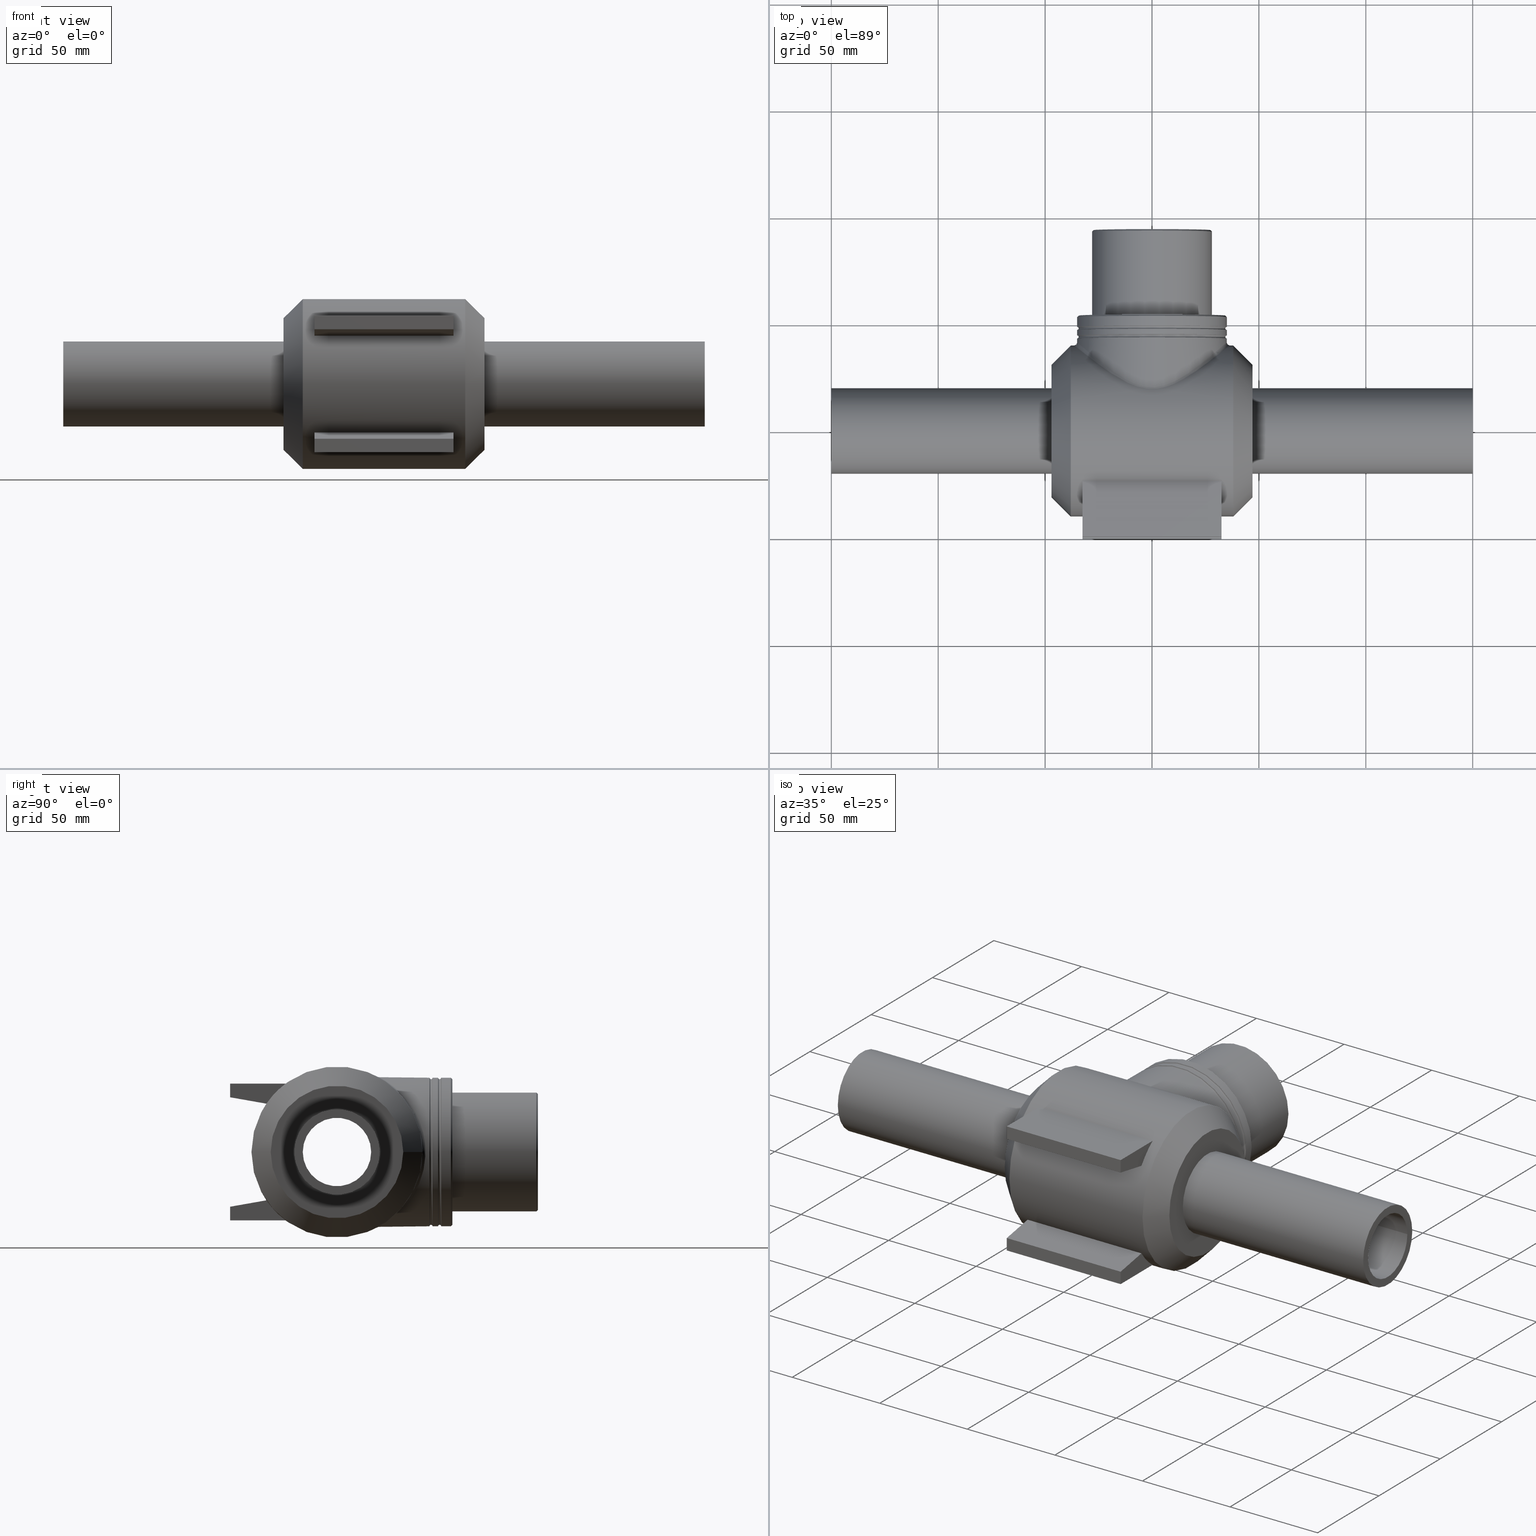
[diagram: canonical four-view strip — front | top / right | iso, engineering-drawing reading convention]
A machine part, canonical four-view strip (front | top / right | iso — engineering-drawing reading convention). The complete STEP part file that produces these views, byte-faithful:
ISO-10303-21;
HEADER;
/* Generated by software containing ST-Developer
 * from STEP Tools, Inc. (www.steptools.com) 
 */

FILE_DESCRIPTION(
/* description */ ('PLASSON PE BALL VALVE 40'),
/* implementation_level */ '2;1');

FILE_NAME(
/* name */ 
'C:\\Dropbox\\KIMPROJECTS-Inventor\\99-16-3568-Processing\\ElectroFusi
on Fittings\\436207\\436207040.ipt.stp',
/* time_stamp */ '2017-10-01T14:42:12+03:00',
/* author */ ('\X2\041A043804400438043B043B\X0\'),
/* organization */ (''),
/* preprocessor_version */ 'ST-DEVELOPER v15.6',
/* originating_system */ 'Autodesk Inventor 2015',
/* authorisation */ '');

FILE_SCHEMA (('AUTOMOTIVE_DESIGN { 1 0 10303 214 3 1 1 }'));
ENDSEC;

DATA;
#10=MECHANICAL_DESIGN_GEOMETRIC_PRESENTATION_REPRESENTATION('',(#13),#989);
#11=SHAPE_REPRESENTATION_RELATIONSHIP('SRR','None',#998,#12);
#12=ADVANCED_BREP_SHAPE_REPRESENTATION($,(#14),#988);
#13=STYLED_ITEM('',(#1007),#14);
#14=MANIFOLD_SOLID_BREP('Solid1',#446);
#15=SPHERICAL_SURFACE('',#499,30.);
#16=TOROIDAL_SURFACE('',#470,35.,0.7);
#17=TOROIDAL_SURFACE('',#474,35.,0.7);
#18=PLANE('',#463);
#19=PLANE('',#469);
#20=PLANE('',#475);
#21=PLANE('',#476);
#22=PLANE('',#477);
#23=PLANE('',#478);
#24=PLANE('',#479);
#25=PLANE('',#480);
#26=PLANE('',#481);
#27=PLANE('',#482);
#28=PLANE('',#483);
#29=PLANE('',#484);
#30=PLANE('',#485);
#31=PLANE('',#491);
#32=PLANE('',#495);
#33=PLANE('',#503);
#34=CONICAL_SURFACE('',#458,34.65,44.9999999999998);
#35=CONICAL_SURFACE('',#465,27.65,45.0000000000004);
#36=CONICAL_SURFACE('',#488,35.5,45.);
#37=CONICAL_SURFACE('',#489,35.5,45.);
#38=LINE('',#884,#58);
#39=LINE('',#887,#59);
#40=LINE('',#892,#60);
#41=LINE('',#895,#61);
#42=LINE('',#923,#62);
#43=LINE('',#925,#63);
#44=LINE('',#926,#64);
#45=LINE('',#929,#65);
#46=LINE('',#930,#66);
#47=LINE('',#933,#67);
#48=LINE('',#934,#68);
#49=LINE('',#936,#69);
#50=LINE('',#940,#70);
#51=LINE('',#942,#71);
#52=LINE('',#943,#72);
#53=LINE('',#946,#73);
#54=LINE('',#947,#74);
#55=LINE('',#950,#75);
#56=LINE('',#951,#76);
#57=LINE('',#953,#77);
#58=VECTOR('',#522,65.);
#59=VECTOR('',#525,65.);
#60=VECTOR('',#528,65.);
#61=VECTOR('',#531,65.);
#62=VECTOR('',#568,26.);
#63=VECTOR('',#569,6.4);
#64=VECTOR('',#570,17.2604727440438);
#65=VECTOR('',#573,65.);
#66=VECTOR('',#574,17.2604727440438);
#67=VECTOR('',#577,65.);
#68=VECTOR('',#578,6.4);
#69=VECTOR('',#581,26.);
#70=VECTOR('',#586,26.);
#71=VECTOR('',#587,17.2604727440438);
#72=VECTOR('',#588,6.4);
#73=VECTOR('',#591,17.2604727440438);
#74=VECTOR('',#592,65.);
#75=VECTOR('',#595,6.4);
#76=VECTOR('',#596,65.);
#77=VECTOR('',#599,26.);
#78=FACE_BOUND('',#146,.T.);
#79=FACE_BOUND('',#148,.T.);
#80=FACE_BOUND('',#149,.T.);
#81=FACE_BOUND('',#150,.T.);
#82=FACE_BOUND('',#151,.T.);
#83=FACE_BOUND('',#153,.T.);
#84=FACE_BOUND('',#155,.T.);
#85=FACE_BOUND('',#157,.T.);
#86=FACE_BOUND('',#159,.T.);
#87=FACE_BOUND('',#161,.T.);
#88=FACE_BOUND('',#164,.T.);
#89=FACE_BOUND('',#166,.T.);
#90=FACE_BOUND('',#168,.T.);
#91=FACE_BOUND('',#180,.T.);
#92=FACE_BOUND('',#182,.T.);
#93=FACE_BOUND('',#184,.T.);
#94=FACE_BOUND('',#186,.T.);
#95=FACE_BOUND('',#188,.T.);
#96=FACE_BOUND('',#190,.T.);
#97=FACE_BOUND('',#192,.T.);
#98=FACE_BOUND('',#193,.T.);
#99=FACE_BOUND('',#194,.T.);
#100=FACE_BOUND('',#196,.T.);
#101=FACE_BOUND('',#198,.T.);
#102=FACE_BOUND('',#200,.T.);
#103=CYLINDRICAL_SURFACE('',#449,35.);
#104=CYLINDRICAL_SURFACE('',#451,40.);
#105=CYLINDRICAL_SURFACE('',#461,35.);
#106=CYLINDRICAL_SURFACE('',#468,28.);
#107=CYLINDRICAL_SURFACE('',#472,35.);
#108=CYLINDRICAL_SURFACE('',#493,20.);
#109=CYLINDRICAL_SURFACE('',#497,16.);
#110=CYLINDRICAL_SURFACE('',#501,16.);
#111=CYLINDRICAL_SURFACE('',#505,20.);
#112=FACE_OUTER_BOUND('',#144,.T.);
#113=FACE_OUTER_BOUND('',#145,.T.);
#114=FACE_OUTER_BOUND('',#147,.T.);
#115=FACE_OUTER_BOUND('',#152,.T.);
#116=FACE_OUTER_BOUND('',#154,.T.);
#117=FACE_OUTER_BOUND('',#156,.T.);
#118=FACE_OUTER_BOUND('',#158,.T.);
#119=FACE_OUTER_BOUND('',#160,.T.);
#120=FACE_OUTER_BOUND('',#162,.T.);
#121=FACE_OUTER_BOUND('',#163,.T.);
#122=FACE_OUTER_BOUND('',#165,.T.);
#123=FACE_OUTER_BOUND('',#167,.T.);
#124=FACE_OUTER_BOUND('',#169,.T.);
#125=FACE_OUTER_BOUND('',#170,.T.);
#126=FACE_OUTER_BOUND('',#171,.T.);
#127=FACE_OUTER_BOUND('',#172,.T.);
#128=FACE_OUTER_BOUND('',#173,.T.);
#129=FACE_OUTER_BOUND('',#174,.T.);
#130=FACE_OUTER_BOUND('',#175,.T.);
#131=FACE_OUTER_BOUND('',#176,.T.);
#132=FACE_OUTER_BOUND('',#177,.T.);
#133=FACE_OUTER_BOUND('',#178,.T.);
#134=FACE_OUTER_BOUND('',#179,.T.);
#135=FACE_OUTER_BOUND('',#181,.T.);
#136=FACE_OUTER_BOUND('',#183,.T.);
#137=FACE_OUTER_BOUND('',#185,.T.);
#138=FACE_OUTER_BOUND('',#187,.T.);
#139=FACE_OUTER_BOUND('',#189,.T.);
#140=FACE_OUTER_BOUND('',#191,.T.);
#141=FACE_OUTER_BOUND('',#195,.T.);
#142=FACE_OUTER_BOUND('',#197,.T.);
#143=FACE_OUTER_BOUND('',#199,.T.);
#144=EDGE_LOOP('',(#316,#317,#318,#319));
#145=EDGE_LOOP('',(#320));
#146=EDGE_LOOP('',(#321));
#147=EDGE_LOOP('',(#322));
#148=EDGE_LOOP('',(#323));
#149=EDGE_LOOP('',(#324,#325,#326,#327));
#150=EDGE_LOOP('',(#328,#329,#330,#331));
#151=EDGE_LOOP('',(#332));
#152=EDGE_LOOP('',(#333));
#153=EDGE_LOOP('',(#334));
#154=EDGE_LOOP('',(#335));
#155=EDGE_LOOP('',(#336));
#156=EDGE_LOOP('',(#337));
#157=EDGE_LOOP('',(#338));
#158=EDGE_LOOP('',(#339));
#159=EDGE_LOOP('',(#340));
#160=EDGE_LOOP('',(#341));
#161=EDGE_LOOP('',(#342));
#162=EDGE_LOOP('',(#343));
#163=EDGE_LOOP('',(#344));
#164=EDGE_LOOP('',(#345));
#165=EDGE_LOOP('',(#346));
#166=EDGE_LOOP('',(#347));
#167=EDGE_LOOP('',(#348));
#168=EDGE_LOOP('',(#349));
#169=EDGE_LOOP('',(#350,#351,#352,#353));
#170=EDGE_LOOP('',(#354,#355,#356,#357));
#171=EDGE_LOOP('',(#358,#359,#360,#361));
#172=EDGE_LOOP('',(#362,#363,#364,#365));
#173=EDGE_LOOP('',(#366,#367,#368,#369));
#174=EDGE_LOOP('',(#370,#371,#372,#373));
#175=EDGE_LOOP('',(#374,#375,#376,#377));
#176=EDGE_LOOP('',(#378,#379,#380,#381));
#177=EDGE_LOOP('',(#382,#383,#384,#385));
#178=EDGE_LOOP('',(#386,#387,#388,#389));
#179=EDGE_LOOP('',(#390));
#180=EDGE_LOOP('',(#391));
#181=EDGE_LOOP('',(#392));
#182=EDGE_LOOP('',(#393));
#183=EDGE_LOOP('',(#394));
#184=EDGE_LOOP('',(#395));
#185=EDGE_LOOP('',(#396));
#186=EDGE_LOOP('',(#397));
#187=EDGE_LOOP('',(#398));
#188=EDGE_LOOP('',(#399));
#189=EDGE_LOOP('',(#400));
#190=EDGE_LOOP('',(#401));
#191=EDGE_LOOP('',(#402));
#192=EDGE_LOOP('',(#403));
#193=EDGE_LOOP('',(#404));
#194=EDGE_LOOP('',(#405));
#195=EDGE_LOOP('',(#406));
#196=EDGE_LOOP('',(#407));
#197=EDGE_LOOP('',(#408));
#198=EDGE_LOOP('',(#409));
#199=EDGE_LOOP('',(#410));
#200=EDGE_LOOP('',(#411));
#201=B_SPLINE_CURVE_WITH_KNOTS('',3,(#808,#809,#810,#811,#812,#813,#814,
#815,#816,#817,#818,#819,#820,#821,#822,#823,#824,#825,#826,#827,#828,#829,
#830,#831,#832,#833,#834,#835,#836,#837,#838,#839),.UNSPECIFIED.,.T.,.F.,
(4,1,1,1,1,1,1,1,1,1,1,1,1,1,1,1,1,1,1,1,1,1,1,1,1,1,1,1,1,4),(11.6170748413418,
12.0319703713897,12.4468659014376,13.2766569615335,14.1064480216293,14.9362390817252,
15.766030141821,16.5958212019169,17.4256122620127,18.2554033221085,19.3617914022363,
20.4681794823641,21.5745675624919,22.1277616025558,22.6809556426197,23.2341496826836,
23.7873437227475,24.3405377628114,24.8937318028753,26.0001198830031,27.1065079631309,
28.2128960432587,29.3192841233864,30.4256722035142,31.532060283642,32.3618513437379,
33.1916424038337,34.0214334639296,34.4363289939775,34.8512245240254),
 .UNSPECIFIED.);
#202=B_SPLINE_CURVE_WITH_KNOTS('',3,(#840,#841,#842,#843,#844,#845,#846,
#847,#848,#849,#850,#851,#852,#853,#854,#855,#856,#857,#858,#859,#860,#861,
#862,#863,#864,#865,#866,#867,#868,#869,#870,#871),.UNSPECIFIED.,.T.,.F.,
(4,1,1,1,1,1,1,1,1,1,1,1,1,1,1,1,1,1,1,1,1,1,1,1,1,1,1,1,1,4),(-34.8512245240254,
-34.4363289939775,-34.0214334639296,-33.1916424038337,-32.3618513437379,
-31.532060283642,-30.4256722035142,-29.3192841233864,-28.2128960432587,
-27.1065079631309,-26.0001198830031,-24.8937318028753,-24.3405377628114,
-23.7873437227475,-23.2341496826836,-22.6809556426197,-22.1277616025558,
-21.5745675624919,-20.4681794823641,-19.3617914022363,-18.2554033221085,
-17.4256122620127,-16.5958212019169,-15.766030141821,-14.9362390817252,
-14.1064480216293,-13.2766569615335,-12.4468659014376,-12.0319703713897,
-11.6170748413418),.UNSPECIFIED.);
#203=CIRCLE('',#448,1.4);
#204=CIRCLE('',#450,35.);
#205=CIRCLE('',#452,40.);
#206=CIRCLE('',#453,40.);
#207=CIRCLE('',#454,40.);
#208=CIRCLE('',#455,40.);
#209=CIRCLE('',#456,40.);
#210=CIRCLE('',#457,40.);
#211=CIRCLE('',#459,35.);
#212=CIRCLE('',#460,34.3);
#213=CIRCLE('',#462,35.);
#214=CIRCLE('',#464,28.);
#215=CIRCLE('',#466,28.);
#216=CIRCLE('',#467,27.3);
#217=CIRCLE('',#471,35.);
#218=CIRCLE('',#473,35.);
#219=CIRCLE('',#486,31.);
#220=CIRCLE('',#487,20.);
#221=CIRCLE('',#490,31.);
#222=CIRCLE('',#492,20.);
#223=CIRCLE('',#494,20.);
#224=CIRCLE('',#496,16.);
#225=CIRCLE('',#498,16.);
#226=CIRCLE('',#500,16.);
#227=CIRCLE('',#502,16.);
#228=CIRCLE('',#504,20.);
#229=VERTEX_POINT('',#805);
#230=VERTEX_POINT('',#806);
#231=VERTEX_POINT('',#873);
#232=VERTEX_POINT('',#876);
#233=VERTEX_POINT('',#878);
#234=VERTEX_POINT('',#880);
#235=VERTEX_POINT('',#881);
#236=VERTEX_POINT('',#883);
#237=VERTEX_POINT('',#885);
#238=VERTEX_POINT('',#888);
#239=VERTEX_POINT('',#889);
#240=VERTEX_POINT('',#891);
#241=VERTEX_POINT('',#893);
#242=VERTEX_POINT('',#897);
#243=VERTEX_POINT('',#899);
#244=VERTEX_POINT('',#902);
#245=VERTEX_POINT('',#905);
#246=VERTEX_POINT('',#908);
#247=VERTEX_POINT('',#910);
#248=VERTEX_POINT('',#915);
#249=VERTEX_POINT('',#918);
#250=VERTEX_POINT('',#922);
#251=VERTEX_POINT('',#924);
#252=VERTEX_POINT('',#928);
#253=VERTEX_POINT('',#932);
#254=VERTEX_POINT('',#939);
#255=VERTEX_POINT('',#941);
#256=VERTEX_POINT('',#945);
#257=VERTEX_POINT('',#949);
#258=VERTEX_POINT('',#956);
#259=VERTEX_POINT('',#958);
#260=VERTEX_POINT('',#962);
#261=VERTEX_POINT('',#965);
#262=VERTEX_POINT('',#968);
#263=VERTEX_POINT('',#971);
#264=VERTEX_POINT('',#974);
#265=VERTEX_POINT('',#977);
#266=VERTEX_POINT('',#980);
#267=VERTEX_POINT('',#983);
#268=EDGE_CURVE('',#229,#230,#203,.T.);
#269=EDGE_CURVE('',#230,#230,#201,.T.);
#270=EDGE_CURVE('',#229,#229,#202,.T.);
#271=EDGE_CURVE('',#231,#231,#204,.T.);
#272=EDGE_CURVE('',#232,#232,#205,.T.);
#273=EDGE_CURVE('',#233,#233,#206,.T.);
#274=EDGE_CURVE('',#234,#235,#207,.T.);
#275=EDGE_CURVE('',#235,#236,#38,.T.);
#276=EDGE_CURVE('',#236,#237,#208,.T.);
#277=EDGE_CURVE('',#237,#234,#39,.T.);
#278=EDGE_CURVE('',#238,#239,#209,.T.);
#279=EDGE_CURVE('',#239,#240,#40,.T.);
#280=EDGE_CURVE('',#240,#241,#210,.T.);
#281=EDGE_CURVE('',#241,#238,#41,.T.);
#282=EDGE_CURVE('',#242,#242,#211,.T.);
#283=EDGE_CURVE('',#243,#243,#212,.T.);
#284=EDGE_CURVE('',#244,#244,#213,.T.);
#285=EDGE_CURVE('',#245,#245,#214,.T.);
#286=EDGE_CURVE('',#246,#246,#215,.T.);
#287=EDGE_CURVE('',#247,#247,#216,.T.);
#288=EDGE_CURVE('',#248,#248,#217,.T.);
#289=EDGE_CURVE('',#249,#249,#218,.T.);
#290=EDGE_CURVE('',#250,#238,#42,.T.);
#291=EDGE_CURVE('',#251,#250,#43,.T.);
#292=EDGE_CURVE('',#239,#251,#44,.T.);
#293=EDGE_CURVE('',#251,#252,#45,.T.);
#294=EDGE_CURVE('',#252,#240,#46,.T.);
#295=EDGE_CURVE('',#250,#253,#47,.T.);
#296=EDGE_CURVE('',#253,#252,#48,.T.);
#297=EDGE_CURVE('',#241,#253,#49,.T.);
#298=EDGE_CURVE('',#254,#235,#50,.T.);
#299=EDGE_CURVE('',#234,#255,#51,.T.);
#300=EDGE_CURVE('',#255,#254,#52,.T.);
#301=EDGE_CURVE('',#256,#237,#53,.T.);
#302=EDGE_CURVE('',#255,#256,#54,.T.);
#303=EDGE_CURVE('',#257,#256,#55,.T.);
#304=EDGE_CURVE('',#254,#257,#56,.T.);
#305=EDGE_CURVE('',#236,#257,#57,.T.);
#306=EDGE_CURVE('',#258,#258,#219,.T.);
#307=EDGE_CURVE('',#259,#259,#220,.T.);
#308=EDGE_CURVE('',#260,#260,#221,.T.);
#309=EDGE_CURVE('',#261,#261,#222,.T.);
#310=EDGE_CURVE('',#262,#262,#223,.T.);
#311=EDGE_CURVE('',#263,#263,#224,.T.);
#312=EDGE_CURVE('',#264,#264,#225,.T.);
#313=EDGE_CURVE('',#265,#265,#226,.T.);
#314=EDGE_CURVE('',#266,#266,#227,.T.);
#315=EDGE_CURVE('',#267,#267,#228,.T.);
#316=ORIENTED_EDGE('',*,*,#268,.T.);
#317=ORIENTED_EDGE('',*,*,#269,.T.);
#318=ORIENTED_EDGE('',*,*,#268,.F.);
#319=ORIENTED_EDGE('',*,*,#270,.T.);
#320=ORIENTED_EDGE('',*,*,#271,.F.);
#321=ORIENTED_EDGE('',*,*,#269,.F.);
#322=ORIENTED_EDGE('',*,*,#272,.T.);
#323=ORIENTED_EDGE('',*,*,#273,.F.);
#324=ORIENTED_EDGE('',*,*,#274,.T.);
#325=ORIENTED_EDGE('',*,*,#275,.T.);
#326=ORIENTED_EDGE('',*,*,#276,.T.);
#327=ORIENTED_EDGE('',*,*,#277,.T.);
#328=ORIENTED_EDGE('',*,*,#278,.T.);
#329=ORIENTED_EDGE('',*,*,#279,.T.);
#330=ORIENTED_EDGE('',*,*,#280,.T.);
#331=ORIENTED_EDGE('',*,*,#281,.T.);
#332=ORIENTED_EDGE('',*,*,#270,.F.);
#333=ORIENTED_EDGE('',*,*,#282,.T.);
#334=ORIENTED_EDGE('',*,*,#283,.T.);
#335=ORIENTED_EDGE('',*,*,#284,.T.);
#336=ORIENTED_EDGE('',*,*,#282,.F.);
#337=ORIENTED_EDGE('',*,*,#283,.F.);
#338=ORIENTED_EDGE('',*,*,#285,.F.);
#339=ORIENTED_EDGE('',*,*,#286,.T.);
#340=ORIENTED_EDGE('',*,*,#287,.T.);
#341=ORIENTED_EDGE('',*,*,#285,.T.);
#342=ORIENTED_EDGE('',*,*,#286,.F.);
#343=ORIENTED_EDGE('',*,*,#287,.F.);
#344=ORIENTED_EDGE('',*,*,#271,.T.);
#345=ORIENTED_EDGE('',*,*,#288,.F.);
#346=ORIENTED_EDGE('',*,*,#288,.T.);
#347=ORIENTED_EDGE('',*,*,#289,.F.);
#348=ORIENTED_EDGE('',*,*,#289,.T.);
#349=ORIENTED_EDGE('',*,*,#284,.F.);
#350=ORIENTED_EDGE('',*,*,#290,.F.);
#351=ORIENTED_EDGE('',*,*,#291,.F.);
#352=ORIENTED_EDGE('',*,*,#292,.F.);
#353=ORIENTED_EDGE('',*,*,#278,.F.);
#354=ORIENTED_EDGE('',*,*,#279,.F.);
#355=ORIENTED_EDGE('',*,*,#292,.T.);
#356=ORIENTED_EDGE('',*,*,#293,.T.);
#357=ORIENTED_EDGE('',*,*,#294,.T.);
#358=ORIENTED_EDGE('',*,*,#293,.F.);
#359=ORIENTED_EDGE('',*,*,#291,.T.);
#360=ORIENTED_EDGE('',*,*,#295,.T.);
#361=ORIENTED_EDGE('',*,*,#296,.T.);
#362=ORIENTED_EDGE('',*,*,#295,.F.);
#363=ORIENTED_EDGE('',*,*,#290,.T.);
#364=ORIENTED_EDGE('',*,*,#281,.F.);
#365=ORIENTED_EDGE('',*,*,#297,.T.);
#366=ORIENTED_EDGE('',*,*,#297,.F.);
#367=ORIENTED_EDGE('',*,*,#280,.F.);
#368=ORIENTED_EDGE('',*,*,#294,.F.);
#369=ORIENTED_EDGE('',*,*,#296,.F.);
#370=ORIENTED_EDGE('',*,*,#298,.T.);
#371=ORIENTED_EDGE('',*,*,#274,.F.);
#372=ORIENTED_EDGE('',*,*,#299,.T.);
#373=ORIENTED_EDGE('',*,*,#300,.T.);
#374=ORIENTED_EDGE('',*,*,#277,.F.);
#375=ORIENTED_EDGE('',*,*,#301,.F.);
#376=ORIENTED_EDGE('',*,*,#302,.F.);
#377=ORIENTED_EDGE('',*,*,#299,.F.);
#378=ORIENTED_EDGE('',*,*,#302,.T.);
#379=ORIENTED_EDGE('',*,*,#303,.F.);
#380=ORIENTED_EDGE('',*,*,#304,.F.);
#381=ORIENTED_EDGE('',*,*,#300,.F.);
#382=ORIENTED_EDGE('',*,*,#304,.T.);
#383=ORIENTED_EDGE('',*,*,#305,.F.);
#384=ORIENTED_EDGE('',*,*,#275,.F.);
#385=ORIENTED_EDGE('',*,*,#298,.F.);
#386=ORIENTED_EDGE('',*,*,#305,.T.);
#387=ORIENTED_EDGE('',*,*,#303,.T.);
#388=ORIENTED_EDGE('',*,*,#301,.T.);
#389=ORIENTED_EDGE('',*,*,#276,.F.);
#390=ORIENTED_EDGE('',*,*,#306,.F.);
#391=ORIENTED_EDGE('',*,*,#307,.T.);
#392=ORIENTED_EDGE('',*,*,#272,.F.);
#393=ORIENTED_EDGE('',*,*,#306,.T.);
#394=ORIENTED_EDGE('',*,*,#308,.F.);
#395=ORIENTED_EDGE('',*,*,#273,.T.);
#396=ORIENTED_EDGE('',*,*,#308,.T.);
#397=ORIENTED_EDGE('',*,*,#309,.F.);
#398=ORIENTED_EDGE('',*,*,#310,.F.);
#399=ORIENTED_EDGE('',*,*,#309,.T.);
#400=ORIENTED_EDGE('',*,*,#310,.T.);
#401=ORIENTED_EDGE('',*,*,#311,.F.);
#402=ORIENTED_EDGE('',*,*,#312,.F.);
#403=ORIENTED_EDGE('',*,*,#311,.T.);
#404=ORIENTED_EDGE('',*,*,#313,.F.);
#405=ORIENTED_EDGE('',*,*,#312,.T.);
#406=ORIENTED_EDGE('',*,*,#314,.F.);
#407=ORIENTED_EDGE('',*,*,#313,.T.);
#408=ORIENTED_EDGE('',*,*,#315,.F.);
#409=ORIENTED_EDGE('',*,*,#314,.T.);
#410=ORIENTED_EDGE('',*,*,#307,.F.);
#411=ORIENTED_EDGE('',*,*,#315,.T.);
#412=B_SPLINE_SURFACE_WITH_KNOTS('',3,3,((#645,#646,#647,#648,#649,#650,
#651,#652,#653,#654,#655,#656,#657,#658,#659,#660,#661,#662,#663,#664,#665,
#666,#667,#668,#669,#670,#671,#672,#673,#674,#675,#676),(#677,#678,#679,
#680,#681,#682,#683,#684,#685,#686,#687,#688,#689,#690,#691,#692,#693,#694,
#695,#696,#697,#698,#699,#700,#701,#702,#703,#704,#705,#706,#707,#708),
(#709,#710,#711,#712,#713,#714,#715,#716,#717,#718,#719,#720,#721,#722,
#723,#724,#725,#726,#727,#728,#729,#730,#731,#732,#733,#734,#735,#736,#737,
#738,#739,#740),(#741,#742,#743,#744,#745,#746,#747,#748,#749,#750,#751,
#752,#753,#754,#755,#756,#757,#758,#759,#760,#761,#762,#763,#764,#765,#766,
#767,#768,#769,#770,#771,#772),(#773,#774,#775,#776,#777,#778,#779,#780,
#781,#782,#783,#784,#785,#786,#787,#788,#789,#790,#791,#792,#793,#794,#795,
#796,#797,#798,#799,#800,#801,#802,#803,#804)),.UNSPECIFIED.,.F.,.T.,.F.,
(4,1,4),(4,1,1,1,1,1,1,1,1,1,1,1,1,1,1,1,1,1,1,1,1,1,1,1,1,1,1,1,1,4),(0.,
0.571428571428571,1.),(11.6170748413418,12.0319703713897,12.4468659014376,
13.2766569615335,14.1064480216293,14.9362390817252,15.766030141821,16.5958212019169,
17.4256122620127,18.2554033221085,19.3617914022363,20.4681794823641,21.5745675624919,
22.1277616025558,22.6809556426197,23.2341496826836,23.7873437227475,24.3405377628114,
24.8937318028753,26.0001198830031,27.1065079631309,28.2128960432587,29.3192841233864,
30.4256722035142,31.532060283642,32.3618513437379,33.1916424038337,34.0214334639296,
34.4363289939775,34.8512245240254),.UNSPECIFIED.);
#413=ADVANCED_FACE('',(#112),#412,.T.);
#414=ADVANCED_FACE('',(#113,#78),#103,.T.);
#415=ADVANCED_FACE('',(#114,#79,#80,#81,#82),#104,.T.);
#416=ADVANCED_FACE('',(#115,#83),#34,.T.);
#417=ADVANCED_FACE('',(#116,#84),#105,.T.);
#418=ADVANCED_FACE('',(#117,#85),#18,.T.);
#419=ADVANCED_FACE('',(#118,#86),#35,.T.);
#420=ADVANCED_FACE('',(#119,#87),#106,.T.);
#421=ADVANCED_FACE('',(#120),#19,.T.);
#422=ADVANCED_FACE('',(#121,#88),#16,.F.);
#423=ADVANCED_FACE('',(#122,#89),#107,.T.);
#424=ADVANCED_FACE('',(#123,#90),#17,.F.);
#425=ADVANCED_FACE('',(#124),#20,.T.);
#426=ADVANCED_FACE('',(#125),#21,.F.);
#427=ADVANCED_FACE('',(#126),#22,.F.);
#428=ADVANCED_FACE('',(#127),#23,.F.);
#429=ADVANCED_FACE('',(#128),#24,.F.);
#430=ADVANCED_FACE('',(#129),#25,.F.);
#431=ADVANCED_FACE('',(#130),#26,.T.);
#432=ADVANCED_FACE('',(#131),#27,.T.);
#433=ADVANCED_FACE('',(#132),#28,.T.);
#434=ADVANCED_FACE('',(#133),#29,.T.);
#435=ADVANCED_FACE('',(#134,#91),#30,.T.);
#436=ADVANCED_FACE('',(#135,#92),#36,.T.);
#437=ADVANCED_FACE('',(#136,#93),#37,.T.);
#438=ADVANCED_FACE('',(#137,#94),#31,.T.);
#439=ADVANCED_FACE('',(#138,#95),#108,.T.);
#440=ADVANCED_FACE('',(#139,#96),#32,.T.);
#441=ADVANCED_FACE('',(#140,#97),#109,.F.);
#442=ADVANCED_FACE('',(#98,#99),#15,.F.);
#443=ADVANCED_FACE('',(#141,#100),#110,.F.);
#444=ADVANCED_FACE('',(#142,#101),#33,.T.);
#445=ADVANCED_FACE('',(#143,#102),#111,.T.);
#446=CLOSED_SHELL('',(#413,#414,#415,#416,#417,#418,#419,#420,#421,#422,
#423,#424,#425,#426,#427,#428,#429,#430,#431,#432,#433,#434,#435,#436,#437,
#438,#439,#440,#441,#442,#443,#444,#445));
#447=AXIS2_PLACEMENT_3D('placement',#644,#506,#507);
#448=AXIS2_PLACEMENT_3D('',#807,#508,#509);
#449=AXIS2_PLACEMENT_3D('',#872,#510,#511);
#450=AXIS2_PLACEMENT_3D('',#874,#512,#513);
#451=AXIS2_PLACEMENT_3D('',#875,#514,#515);
#452=AXIS2_PLACEMENT_3D('',#877,#516,#517);
#453=AXIS2_PLACEMENT_3D('',#879,#518,#519);
#454=AXIS2_PLACEMENT_3D('',#882,#520,#521);
#455=AXIS2_PLACEMENT_3D('',#886,#523,#524);
#456=AXIS2_PLACEMENT_3D('',#890,#526,#527);
#457=AXIS2_PLACEMENT_3D('',#894,#529,#530);
#458=AXIS2_PLACEMENT_3D('',#896,#532,#533);
#459=AXIS2_PLACEMENT_3D('',#898,#534,#535);
#460=AXIS2_PLACEMENT_3D('',#900,#536,#537);
#461=AXIS2_PLACEMENT_3D('',#901,#538,#539);
#462=AXIS2_PLACEMENT_3D('',#903,#540,#541);
#463=AXIS2_PLACEMENT_3D('',#904,#542,#543);
#464=AXIS2_PLACEMENT_3D('',#906,#544,#545);
#465=AXIS2_PLACEMENT_3D('',#907,#546,#547);
#466=AXIS2_PLACEMENT_3D('',#909,#548,#549);
#467=AXIS2_PLACEMENT_3D('',#911,#550,#551);
#468=AXIS2_PLACEMENT_3D('',#912,#552,#553);
#469=AXIS2_PLACEMENT_3D('',#913,#554,#555);
#470=AXIS2_PLACEMENT_3D('',#914,#556,#557);
#471=AXIS2_PLACEMENT_3D('',#916,#558,#559);
#472=AXIS2_PLACEMENT_3D('',#917,#560,#561);
#473=AXIS2_PLACEMENT_3D('',#919,#562,#563);
#474=AXIS2_PLACEMENT_3D('',#920,#564,#565);
#475=AXIS2_PLACEMENT_3D('',#921,#566,#567);
#476=AXIS2_PLACEMENT_3D('',#927,#571,#572);
#477=AXIS2_PLACEMENT_3D('',#931,#575,#576);
#478=AXIS2_PLACEMENT_3D('',#935,#579,#580);
#479=AXIS2_PLACEMENT_3D('',#937,#582,#583);
#480=AXIS2_PLACEMENT_3D('',#938,#584,#585);
#481=AXIS2_PLACEMENT_3D('',#944,#589,#590);
#482=AXIS2_PLACEMENT_3D('',#948,#593,#594);
#483=AXIS2_PLACEMENT_3D('',#952,#597,#598);
#484=AXIS2_PLACEMENT_3D('',#954,#600,#601);
#485=AXIS2_PLACEMENT_3D('',#955,#602,#603);
#486=AXIS2_PLACEMENT_3D('',#957,#604,#605);
#487=AXIS2_PLACEMENT_3D('',#959,#606,#607);
#488=AXIS2_PLACEMENT_3D('',#960,#608,#609);
#489=AXIS2_PLACEMENT_3D('',#961,#610,#611);
#490=AXIS2_PLACEMENT_3D('',#963,#612,#613);
#491=AXIS2_PLACEMENT_3D('',#964,#614,#615);
#492=AXIS2_PLACEMENT_3D('',#966,#616,#617);
#493=AXIS2_PLACEMENT_3D('',#967,#618,#619);
#494=AXIS2_PLACEMENT_3D('',#969,#620,#621);
#495=AXIS2_PLACEMENT_3D('',#970,#622,#623);
#496=AXIS2_PLACEMENT_3D('',#972,#624,#625);
#497=AXIS2_PLACEMENT_3D('',#973,#626,#627);
#498=AXIS2_PLACEMENT_3D('',#975,#628,#629);
#499=AXIS2_PLACEMENT_3D('',#976,#630,#631);
#500=AXIS2_PLACEMENT_3D('',#978,#632,#633);
#501=AXIS2_PLACEMENT_3D('',#979,#634,#635);
#502=AXIS2_PLACEMENT_3D('',#981,#636,#637);
#503=AXIS2_PLACEMENT_3D('',#982,#638,#639);
#504=AXIS2_PLACEMENT_3D('',#984,#640,#641);
#505=AXIS2_PLACEMENT_3D('',#985,#642,#643);
#506=DIRECTION('axis',(0.,0.,1.));
#507=DIRECTION('refdir',(1.,0.,0.));
#508=DIRECTION('center_axis',(-1.,4.16147934360791E-16,0.));
#509=DIRECTION('ref_axis',(-1.98254111540206E-16,-0.476402969162223,0.879227053140096));
#510=DIRECTION('center_axis',(0.,1.,0.));
#511=DIRECTION('ref_axis',(-1.,0.,0.));
#512=DIRECTION('center_axis',(0.,1.,0.));
#513=DIRECTION('ref_axis',(1.,0.,0.));
#514=DIRECTION('center_axis',(1.,0.,0.));
#515=DIRECTION('ref_axis',(0.,1.,0.));
#516=DIRECTION('center_axis',(1.,0.,0.));
#517=DIRECTION('ref_axis',(0.,0.,-1.));
#518=DIRECTION('center_axis',(1.,0.,0.));
#519=DIRECTION('ref_axis',(0.,0.,-1.));
#520=DIRECTION('center_axis',(-1.,0.,0.));
#521=DIRECTION('ref_axis',(0.,1.,0.));
#522=DIRECTION('',(1.,0.,0.));
#523=DIRECTION('center_axis',(1.,0.,0.));
#524=DIRECTION('ref_axis',(0.,1.,0.));
#525=DIRECTION('',(-1.,0.,0.));
#526=DIRECTION('center_axis',(-1.,0.,0.));
#527=DIRECTION('ref_axis',(0.,1.,0.));
#528=DIRECTION('',(1.,0.,0.));
#529=DIRECTION('center_axis',(1.,0.,0.));
#530=DIRECTION('ref_axis',(0.,1.,0.));
#531=DIRECTION('',(-1.,0.,0.));
#532=DIRECTION('center_axis',(0.,-1.,0.));
#533=DIRECTION('ref_axis',(1.,0.,0.));
#534=DIRECTION('center_axis',(0.,1.,0.));
#535=DIRECTION('ref_axis',(1.,0.,0.));
#536=DIRECTION('center_axis',(0.,-1.,0.));
#537=DIRECTION('ref_axis',(1.,0.,0.));
#538=DIRECTION('center_axis',(0.,1.,0.));
#539=DIRECTION('ref_axis',(-1.,0.,0.));
#540=DIRECTION('center_axis',(0.,1.,0.));
#541=DIRECTION('ref_axis',(1.,0.,0.));
#542=DIRECTION('center_axis',(0.,1.,0.));
#543=DIRECTION('ref_axis',(0.,0.,1.));
#544=DIRECTION('center_axis',(0.,1.,0.));
#545=DIRECTION('ref_axis',(1.,0.,0.));
#546=DIRECTION('center_axis',(0.,-1.,0.));
#547=DIRECTION('ref_axis',(1.,0.,0.));
#548=DIRECTION('center_axis',(0.,1.,0.));
#549=DIRECTION('ref_axis',(1.,0.,0.));
#550=DIRECTION('center_axis',(0.,-1.,0.));
#551=DIRECTION('ref_axis',(1.,0.,0.));
#552=DIRECTION('center_axis',(0.,1.,0.));
#553=DIRECTION('ref_axis',(-1.,0.,0.));
#554=DIRECTION('center_axis',(0.,1.,0.));
#555=DIRECTION('ref_axis',(0.,0.,1.));
#556=DIRECTION('center_axis',(0.,1.,0.));
#557=DIRECTION('ref_axis',(0.,0.,1.));
#558=DIRECTION('center_axis',(0.,1.,0.));
#559=DIRECTION('ref_axis',(1.,0.,0.));
#560=DIRECTION('center_axis',(0.,1.,0.));
#561=DIRECTION('ref_axis',(-1.,0.,0.));
#562=DIRECTION('center_axis',(0.,1.,0.));
#563=DIRECTION('ref_axis',(1.,0.,0.));
#564=DIRECTION('center_axis',(0.,1.,0.));
#565=DIRECTION('ref_axis',(0.,0.,1.));
#566=DIRECTION('center_axis',(-1.,0.,0.));
#567=DIRECTION('ref_axis',(0.,0.,1.));
#568=DIRECTION('',(0.,1.,0.));
#569=DIRECTION('',(0.,0.,-1.));
#570=DIRECTION('',(0.,-0.984807753012208,-0.17364817766693));
#571=DIRECTION('center_axis',(0.,0.17364817766693,-0.984807753012208));
#572=DIRECTION('ref_axis',(0.,0.984807753012208,0.17364817766693));
#573=DIRECTION('',(1.,0.,0.));
#574=DIRECTION('',(0.,0.984807753012208,0.17364817766693));
#575=DIRECTION('center_axis',(0.,1.,0.));
#576=DIRECTION('ref_axis',(0.,0.,1.));
#577=DIRECTION('',(1.,0.,0.));
#578=DIRECTION('',(0.,0.,1.));
#579=DIRECTION('center_axis',(0.,0.,1.));
#580=DIRECTION('ref_axis',(0.,-1.,0.));
#581=DIRECTION('',(0.,-1.,0.));
#582=DIRECTION('center_axis',(-1.,0.,0.));
#583=DIRECTION('ref_axis',(0.,0.,1.));
#584=DIRECTION('center_axis',(1.,0.,0.));
#585=DIRECTION('ref_axis',(0.,0.,-1.));
#586=DIRECTION('',(0.,1.,0.));
#587=DIRECTION('',(0.,-0.984807753012208,0.17364817766693));
#588=DIRECTION('',(0.,0.,1.));
#589=DIRECTION('center_axis',(0.,-0.17364817766693,-0.984807753012208));
#590=DIRECTION('ref_axis',(0.,0.984807753012208,-0.17364817766693));
#591=DIRECTION('',(0.,0.984807753012208,-0.17364817766693));
#592=DIRECTION('',(1.,0.,0.));
#593=DIRECTION('center_axis',(0.,-1.,0.));
#594=DIRECTION('ref_axis',(0.,0.,-1.));
#595=DIRECTION('',(0.,0.,-1.));
#596=DIRECTION('',(1.,0.,0.));
#597=DIRECTION('center_axis',(0.,0.,1.));
#598=DIRECTION('ref_axis',(0.,-1.,0.));
#599=DIRECTION('',(0.,-1.,0.));
#600=DIRECTION('center_axis',(1.,0.,0.));
#601=DIRECTION('ref_axis',(0.,0.,-1.));
#602=DIRECTION('center_axis',(-1.,0.,0.));
#603=DIRECTION('ref_axis',(0.,0.,1.));
#604=DIRECTION('center_axis',(1.,0.,0.));
#605=DIRECTION('ref_axis',(0.,0.,-1.));
#606=DIRECTION('center_axis',(1.,0.,0.));
#607=DIRECTION('ref_axis',(0.,0.,-1.));
#608=DIRECTION('center_axis',(1.,0.,0.));
#609=DIRECTION('ref_axis',(0.,1.,0.));
#610=DIRECTION('center_axis',(-1.,0.,0.));
#611=DIRECTION('ref_axis',(0.,1.,0.));
#612=DIRECTION('center_axis',(1.,0.,0.));
#613=DIRECTION('ref_axis',(0.,0.,-1.));
#614=DIRECTION('center_axis',(1.,0.,0.));
#615=DIRECTION('ref_axis',(0.,0.,-1.));
#616=DIRECTION('center_axis',(1.,0.,0.));
#617=DIRECTION('ref_axis',(0.,0.,-1.));
#618=DIRECTION('center_axis',(1.,0.,0.));
#619=DIRECTION('ref_axis',(0.,1.,0.));
#620=DIRECTION('center_axis',(1.,0.,0.));
#621=DIRECTION('ref_axis',(0.,0.,-1.));
#622=DIRECTION('center_axis',(1.,0.,0.));
#623=DIRECTION('ref_axis',(0.,0.,-1.));
#624=DIRECTION('center_axis',(1.,0.,0.));
#625=DIRECTION('ref_axis',(0.,0.,-1.));
#626=DIRECTION('center_axis',(1.,0.,0.));
#627=DIRECTION('ref_axis',(0.,1.,0.));
#628=DIRECTION('center_axis',(1.,0.,0.));
#629=DIRECTION('ref_axis',(0.,0.,-1.));
#630=DIRECTION('center_axis',(6.12323399573677E-17,0.,1.));
#631=DIRECTION('ref_axis',(1.,0.,0.));
#632=DIRECTION('center_axis',(1.,0.,0.));
#633=DIRECTION('ref_axis',(0.,0.,-1.));
#634=DIRECTION('center_axis',(1.,0.,0.));
#635=DIRECTION('ref_axis',(0.,1.,0.));
#636=DIRECTION('center_axis',(1.,0.,0.));
#637=DIRECTION('ref_axis',(0.,0.,-1.));
#638=DIRECTION('center_axis',(-1.,0.,0.));
#639=DIRECTION('ref_axis',(0.,0.,1.));
#640=DIRECTION('center_axis',(1.,0.,0.));
#641=DIRECTION('ref_axis',(0.,0.,-1.));
#642=DIRECTION('center_axis',(1.,0.,0.));
#643=DIRECTION('ref_axis',(0.,1.,0.));
#644=CARTESIAN_POINT('',(0.,0.,0.));
#645=CARTESIAN_POINT('Ctrl Pts',(6.61062485431286E-6,19.0558804887254,-35.1691475469489));
#646=CARTESIAN_POINT('Ctrl Pts',(1.47441799435233,19.0558740608901,-35.1691578992833));
#647=CARTESIAN_POINT('Ctrl Pts',(4.42315411254913,19.3841385228801,-34.9935379809245));
#648=CARTESIAN_POINT('Ctrl Pts',(9.98025401684283,21.1249720028036,-34.0039084021584));
#649=CARTESIAN_POINT('Ctrl Pts',(16.1522073914565,24.4632953981345,-31.8035612957815));
#650=CARTESIAN_POINT('Ctrl Pts',(22.5895754752709,28.8928982087506,-27.9004949390086));
#651=CARTESIAN_POINT('Ctrl Pts',(28.1444961326862,33.1680415888423,-22.7275884513697));
#652=CARTESIAN_POINT('Ctrl Pts',(32.6294732161702,36.8217679882532,-16.2559878557383));
#653=CARTESIAN_POINT('Ctrl Pts',(35.6692605855648,39.3778658793211,-8.54534073797569));
#654=CARTESIAN_POINT('Ctrl Pts',(36.766941782252,40.3120334739505,-0.00125225680213209));
#655=CARTESIAN_POINT('Ctrl Pts',(35.5455395557525,39.2737437689084,9.50451930796056));
#656=CARTESIAN_POINT('Ctrl Pts',(31.4386605405043,35.8184538632143,18.7336590041752));
#657=CARTESIAN_POINT('Ctrl Pts',(24.6559282019731,30.4037122867494,26.4826804976762));
#658=CARTESIAN_POINT('Ctrl Pts',(17.6679425547828,25.402856095957,31.05642428974));
#659=CARTESIAN_POINT('Ctrl Pts',(11.2326031249699,21.7939884246858,33.5840276422223));
#660=CARTESIAN_POINT('Ctrl Pts',(5.88894927693354,19.6573629962117,34.852046383905));
#661=CARTESIAN_POINT('Ctrl Pts',(-0.00165519294322256,18.7525247066787,
35.3285379106923));
#662=CARTESIAN_POINT('Ctrl Pts',(-5.89194112831394,19.6571724304898,34.8517446135189));
#663=CARTESIAN_POINT('Ctrl Pts',(-11.2352525665441,21.7956286789355,33.5834543675383));
#664=CARTESIAN_POINT('Ctrl Pts',(-17.6692007406528,25.4038479544172,31.0544693022397));
#665=CARTESIAN_POINT('Ctrl Pts',(-24.6595156293583,30.4084789072049,26.4816850244096));
#666=CARTESIAN_POINT('Ctrl Pts',(-31.4375710924976,35.81644680318,18.7282979090657));
#667=CARTESIAN_POINT('Ctrl Pts',(-35.9261585252848,39.5947047763234,8.66671962983322));
#668=CARTESIAN_POINT('Ctrl Pts',(-36.9360896977518,40.4568359378722,-2.94666329507843));
#669=CARTESIAN_POINT('Ctrl Pts',(-34.0335523918959,37.98773899705,-13.9753802194891));
#670=CARTESIAN_POINT('Ctrl Pts',(-28.7558063062651,33.6385872904903,-22.1561193783592));
#671=CARTESIAN_POINT('Ctrl Pts',(-22.5896708552798,28.8930176906673,-27.9013772543897));
#672=CARTESIAN_POINT('Ctrl Pts',(-16.151307688451,24.4626187978444,-31.8035919865153));
#673=CARTESIAN_POINT('Ctrl Pts',(-9.97939287689957,21.1247051247504,-34.0042231430002));
#674=CARTESIAN_POINT('Ctrl Pts',(-4.42331418981575,19.3841770898922,-34.9934758669178));
#675=CARTESIAN_POINT('Ctrl Pts',(-1.47440477310263,19.0558869165608,-35.1691371946144));
#676=CARTESIAN_POINT('Ctrl Pts',(6.61062485431286E-6,19.0558804887254,-35.1691475469489));
#677=CARTESIAN_POINT('Ctrl Pts',(7.13729677911078E-6,19.1723040440079,-35.1060707917086));
#678=CARTESIAN_POINT('Ctrl Pts',(1.46315968961383,19.1722962216075,-35.1060793374292));
#679=CARTESIAN_POINT('Ctrl Pts',(4.3893741669959,19.5017896239501,-34.9284227682327));
#680=CARTESIAN_POINT('Ctrl Pts',(9.90286391307166,21.2483924975669,-33.9276367467401));
#681=CARTESIAN_POINT('Ctrl Pts',(16.0224987928651,24.5941291637527,-31.7042670203427));
#682=CARTESIAN_POINT('Ctrl Pts',(22.39539840063,29.020436772474,-27.7694998552162));
#683=CARTESIAN_POINT('Ctrl Pts',(27.881013711556,33.2736695186419,-22.5728814742871));
#684=CARTESIAN_POINT('Ctrl Pts',(32.2934502525156,36.886126197305,-16.1039068650887));
#685=CARTESIAN_POINT('Ctrl Pts',(35.2689951563328,39.3936594868028,-8.44387129950222));
#686=CARTESIAN_POINT('Ctrl Pts',(36.3385153346949,40.3037931440085,-0.00114742047450783));
#687=CARTESIAN_POINT('Ctrl Pts',(35.1485880578382,39.292379224164,9.3912946275436));
#688=CARTESIAN_POINT('Ctrl Pts',(31.1267988720158,35.9005691234013,18.5705505739287));
#689=CARTESIAN_POINT('Ctrl Pts',(24.4399928754969,30.5289372274653,26.3408448943765));
#690=CARTESIAN_POINT('Ctrl Pts',(17.524107292477,25.5340678948838,30.9503843117569));
#691=CARTESIAN_POINT('Ctrl Pts',(11.1447831852144,21.9191635239053,33.503239770492));
#692=CARTESIAN_POINT('Ctrl Pts',(5.84396960935089,19.7760895225367,34.7852677606212));
#693=CARTESIAN_POINT('Ctrl Pts',(-0.00163861101928148,18.8677775436542,
35.2673183172544));
#694=CARTESIAN_POINT('Ctrl Pts',(-5.84695125800681,19.7759048396631,34.7849875064192));
#695=CARTESIAN_POINT('Ctrl Pts',(-11.1473912680029,21.9207856747832,33.502604882645));
#696=CARTESIAN_POINT('Ctrl Pts',(-17.5254092843755,25.53512573524,30.9485567030403));
#697=CARTESIAN_POINT('Ctrl Pts',(-24.4434232435894,30.5335729174119,26.3395565961256));
#698=CARTESIAN_POINT('Ctrl Pts',(-31.1258874722349,35.8987250067595,18.5656664829749));
#699=CARTESIAN_POINT('Ctrl Pts',(-35.5207959177898,39.6068545981022,8.55723782681405));
#700=CARTESIAN_POINT('Ctrl Pts',(-36.5032614717284,40.4446916047798,-2.90576796605115));
#701=CARTESIAN_POINT('Ctrl Pts',(-33.6724045993379,38.0357439925498,-13.82586007956));
#702=CARTESIAN_POINT('Ctrl Pts',(-28.4849309613422,33.7421870139477,-21.9992795192959));
#703=CARTESIAN_POINT('Ctrl Pts',(-22.3953860874191,29.0203806500683,-27.7701445789685));
#704=CARTESIAN_POINT('Ctrl Pts',(-16.0216658557794,24.5935466289234,-31.7044301320385));
#705=CARTESIAN_POINT('Ctrl Pts',(-9.90198730402268,21.2480911964613,-33.9279080752907));
#706=CARTESIAN_POINT('Ctrl Pts',(-4.38954114690643,19.5018365583523,-34.9283714939096));
#707=CARTESIAN_POINT('Ctrl Pts',(-1.46314541502028,19.1723118664083,-35.1060622459881));
#708=CARTESIAN_POINT('Ctrl Pts',(7.13729677911078E-6,19.1723040440079,-35.1060707917086));
#709=CARTESIAN_POINT('Ctrl Pts',(7.67950226190022E-6,19.391792615525,-35.0247958753547));
#710=CARTESIAN_POINT('Ctrl Pts',(1.44345824013388,19.3917846289466,-35.0248023238325));
#711=CARTESIAN_POINT('Ctrl Pts',(4.33026482730034,19.7248379621606,-34.8456266183629));
#712=CARTESIAN_POINT('Ctrl Pts',(9.76745566230773,21.4900965272841,-33.8364827134297));
#713=CARTESIAN_POINT('Ctrl Pts',(15.7955906612684,24.8703364197417,-31.5955835674902));
#714=CARTESIAN_POINT('Ctrl Pts',(22.0560366953154,29.3373136479845,-27.6358473018303));
#715=CARTESIAN_POINT('Ctrl Pts',(27.4213902217719,33.6208327808437,-22.4201180165884));
#716=CARTESIAN_POINT('Ctrl Pts',(31.7091121978461,37.2463457842084,-15.9544136602035));
#717=CARTESIAN_POINT('Ctrl Pts',(34.575446088787,39.7496329972118,-8.34379375975521));
#718=CARTESIAN_POINT('Ctrl Pts',(35.5975715791279,40.6534254472038,-0.000802369790125256));
#719=CARTESIAN_POINT('Ctrl Pts',(34.4607151490505,39.6493950841416,9.27926013868472));
#720=CARTESIAN_POINT('Ctrl Pts',(30.5835979232597,36.2613030820004,18.4107513321291));
#721=CARTESIAN_POINT('Ctrl Pts',(24.062695607651,30.859189197703,26.1986215921496));
#722=CARTESIAN_POINT('Ctrl Pts',(17.2725294555722,25.8193476011433,30.8364618363972));
#723=CARTESIAN_POINT('Ctrl Pts',(10.9911351632765,22.167879446117,33.4086671455528));
#724=CARTESIAN_POINT('Ctrl Pts',(5.76525735103056,20.0021157585809,34.701216151244));
#725=CARTESIAN_POINT('Ctrl Pts',(-0.00160862780470033,19.0839632146021,
35.1874391823121));
#726=CARTESIAN_POINT('Ctrl Pts',(-5.76822305342161,20.0019360616226,34.7009443715623));
#727=CARTESIAN_POINT('Ctrl Pts',(-10.9936657164538,22.1694964570971,33.4079989723134));
#728=CARTESIAN_POINT('Ctrl Pts',(-17.273934185489,25.8205080603738,30.8347362497716));
#729=CARTESIAN_POINT('Ctrl Pts',(-24.0658008776386,30.8636710147943,26.1970519702745));
#730=CARTESIAN_POINT('Ctrl Pts',(-30.5831156992782,36.2597967096326,18.4064013743884));
#731=CARTESIAN_POINT('Ctrl Pts',(-34.8185164159156,39.9627591743784,8.44865979766027));
#732=CARTESIAN_POINT('Ctrl Pts',(-35.7550873170755,40.7936069262545,-2.86491853262988));
#733=CARTESIAN_POINT('Ctrl Pts',(-33.045035389468,38.3982757231198,-13.6786797747773));
#734=CARTESIAN_POINT('Ctrl Pts',(-28.0123326022771,34.0927208188007,-21.8449448162336));
#735=CARTESIAN_POINT('Ctrl Pts',(-22.0559057939292,29.3372460104885,-27.6362193410578));
#736=CARTESIAN_POINT('Ctrl Pts',(-15.7948362989996,24.8697537506377,-31.5958972155));
#737=CARTESIAN_POINT('Ctrl Pts',(-9.76656654532691,21.4897900416353,-33.8367033747022));
#738=CARTESIAN_POINT('Ctrl Pts',(-4.33043853648937,19.7248858816309,-34.8455879274959));
#739=CARTESIAN_POINT('Ctrl Pts',(-1.44344288112936,19.3918006021034,-35.0247894268769));
#740=CARTESIAN_POINT('Ctrl Pts',(7.67950226190022E-6,19.391792615525,-35.0247958753547));
#741=CARTESIAN_POINT('Ctrl Pts',(7.01749147373508E-6,19.6235248214043,-35.000066459233));
#742=CARTESIAN_POINT('Ctrl Pts',(1.42513335162259,19.6235177970271,-35.0000754810638));
#743=CARTESIAN_POINT('Ctrl Pts',(4.27529722277763,19.9612614045818,-34.8234598075775));
#744=CARTESIAN_POINT('Ctrl Pts',(9.64492760738318,21.7520752833493,-33.828484206184));
#745=CARTESIAN_POINT('Ctrl Pts',(15.6030560024825,25.1847678447263,-31.6176458576132));
#746=CARTESIAN_POINT('Ctrl Pts',(21.8036860757536,29.7341338817614,-27.7031772387625));
#747=CARTESIAN_POINT('Ctrl Pts',(27.1364739162393,34.116586986966,-22.5295828521591));
#748=CARTESIAN_POINT('Ctrl Pts',(31.4218903326902,37.8514618035354,-16.0822428591779));
#749=CARTESIAN_POINT('Ctrl Pts',(34.3093046303231,40.45444514366,-8.43754662594753));
#750=CARTESIAN_POINT('Ctrl Pts',(35.3466607334148,41.4024353815398,-0.00109664850115048));
#751=CARTESIAN_POINT('Ctrl Pts',(34.1925336448488,40.3489372461685,9.38423486608267));
#752=CARTESIAN_POINT('Ctrl Pts',(30.2897367109402,36.8290067763632,18.5428489488235));
#753=CARTESIAN_POINT('Ctrl Pts',(23.7925766104798,31.2852897431606,26.2817487459978));
#754=CARTESIAN_POINT('Ctrl Pts',(17.0644990363778,26.150187773027,30.8678062014118));
#755=CARTESIAN_POINT('Ctrl Pts',(10.85415415596,22.4401132929202,33.4065006374028));
#756=CARTESIAN_POINT('Ctrl Pts',(5.69208470914687,20.2423958597719,34.6811455957242));
#757=CARTESIAN_POINT('Ctrl Pts',(-0.00159530952509147,19.3113946858729,
35.1603697760071));
#758=CARTESIAN_POINT('Ctrl Pts',(-5.69499174553002,20.2422038458391,34.6808572935493));
#759=CARTESIAN_POINT('Ctrl Pts',(-10.8566894336327,22.4417867565779,33.4058904359753));
#760=CARTESIAN_POINT('Ctrl Pts',(-17.065778472583,26.1512556561411,30.8659443757509));
#761=CARTESIAN_POINT('Ctrl Pts',(-23.7958894095804,31.2900851175248,26.2805425313447));
#762=CARTESIAN_POINT('Ctrl Pts',(-30.2888868128967,36.8271075911369,18.5378757000818));
#763=CARTESIAN_POINT('Ctrl Pts',(-34.5536771389844,40.6754887566154,8.55223985647426));
#764=CARTESIAN_POINT('Ctrl Pts',(-35.5064289853855,41.5494170304258,-2.90490832765392));
#765=CARTESIAN_POINT('Ctrl Pts',(-32.7606010852626,39.0418257934973,-13.8115315607905));
#766=CARTESIAN_POINT('Ctrl Pts',(-27.7235910805409,34.5990620575209,-21.958380939108));
#767=CARTESIAN_POINT('Ctrl Pts',(-21.8036619463614,29.7342038163,-27.7038860770223));
#768=CARTESIAN_POINT('Ctrl Pts',(-15.6022521117996,25.1841008700686,-31.6177718281854));
#769=CARTESIAN_POINT('Ctrl Pts',(-9.64407131347173,21.7517906820297,-33.8287668007278));
#770=CARTESIAN_POINT('Ctrl Pts',(-4.27546078200911,19.9613035508451,-34.8234056765923));
#771=CARTESIAN_POINT('Ctrl Pts',(-1.42511931663965,19.6235318457815,-35.0000574374021));
#772=CARTESIAN_POINT('Ctrl Pts',(7.01749147373508E-6,19.6235248214043,-35.000066459233));
#773=CARTESIAN_POINT('Ctrl Pts',(6.35637005140549E-6,19.7228363058308,-35.0000651068193));
#774=CARTESIAN_POINT('Ctrl Pts',(1.41770960995416,19.7228296530212,-35.0000754093829));
#775=CARTESIAN_POINT('Ctrl Pts',(4.253032800528,20.0625833711809,-34.8252998175546));
#776=CARTESIAN_POINT('Ctrl Pts',(9.59639809311812,21.8643460229017,-33.8404280733019));
#777=CARTESIAN_POINT('Ctrl Pts',(15.5309686456312,25.3195107370692,-31.6506595587825));
#778=CARTESIAN_POINT('Ctrl Pts',(21.720745649299,29.9041496460569,-27.7663579441096));
#779=CARTESIAN_POINT('Ctrl Pts',(27.0620155121982,34.3289230444518,-22.6183211991996));
#780=CARTESIAN_POINT('Ctrl Pts',(31.3744934770868,38.1105298678421,-16.1778340679703));
#781=CARTESIAN_POINT('Ctrl Pts',(34.2973659476584,40.7560911850973,-8.50425736904313));
#782=CARTESIAN_POINT('Ctrl Pts',(35.3528286367807,41.7229546455388,-0.00124623633672408));
#783=CARTESIAN_POINT('Ctrl Pts',(34.1784034189927,40.6483248008202,9.45882450359534));
#784=CARTESIAN_POINT('Ctrl Pts',(30.2294812889465,37.0720997484268,18.6435933358859));
#785=CARTESIAN_POINT('Ctrl Pts',(23.7076232711279,31.4678422167857,26.3553599183604));
#786=CARTESIAN_POINT('Ctrl Pts',(16.9884063026758,26.2919560593155,30.9071145575778));
#787=CARTESIAN_POINT('Ctrl Pts',(10.8005799278557,22.5567780195498,33.4225659708655));
#788=CARTESIAN_POINT('Ctrl Pts',(5.66245122782071,20.3453707010791,34.6844884685977));
#789=CARTESIAN_POINT('Ctrl Pts',(-0.00159153167616837,19.4088630714124,
35.1586891707371));
#790=CARTESIAN_POINT('Ctrl Pts',(-5.66532800799418,20.3451734655569,34.6841881490309));
#791=CARTESIAN_POINT('Ctrl Pts',(-10.8031274678309,22.5584756826982,33.4219954523097));
#792=CARTESIAN_POINT('Ctrl Pts',(-16.9896160967816,26.2929826328218,30.9051689690559));
#793=CARTESIAN_POINT('Ctrl Pts',(-23.7110727205367,31.472775668957,26.3543692310231));
#794=CARTESIAN_POINT('Ctrl Pts',(-30.2284337427862,37.0700224412913,18.6382580152721));
#795=CARTESIAN_POINT('Ctrl Pts',(-34.5443831973892,40.9805194434947,8.62505270853596));
#796=CARTESIAN_POINT('Ctrl Pts',(-35.5154708632229,41.8728251956978,-2.93249664462132));
#797=CARTESIAN_POINT('Ctrl Pts',(-32.7245696075922,39.3173098619467,-13.9081908915108));
#798=CARTESIAN_POINT('Ctrl Pts',(-27.6498137560241,34.8159378456575,-22.0495995736556));
#799=CARTESIAN_POINT('Ctrl Pts',(-21.720837360846,29.9042733098407,-27.7672360175897));
#800=CARTESIAN_POINT('Ctrl Pts',(-15.5301035465875,25.3188104557689,-31.6506901019648));
#801=CARTESIAN_POINT('Ctrl Pts',(-9.59557007394189,21.8640698041167,-33.8407413009665));
#802=CARTESIAN_POINT('Ctrl Pts',(-4.25318672097668,20.0626232880384,-34.825238002173));
#803=CARTESIAN_POINT('Ctrl Pts',(-1.41769689721406,19.7228429586404,-35.0000548042558));
#804=CARTESIAN_POINT('Ctrl Pts',(6.35637005140549E-6,19.7228363058308,-35.0000651068193));
#805=CARTESIAN_POINT('',(-1.22268782419593E-15,19.0561187664889,-35.1690821256039));
#806=CARTESIAN_POINT('',(-9.71445146547012E-16,19.723082923316,-35.));
#807=CARTESIAN_POINT('Origin',(-9.71445146547012E-16,19.723082923316,-36.4));
#808=CARTESIAN_POINT('Ctrl Pts',(6.35637005140549E-6,19.7228363058308,-35.0000651068193));
#809=CARTESIAN_POINT('Ctrl Pts',(1.41770960995416,19.7228296530212,-35.0000754093829));
#810=CARTESIAN_POINT('Ctrl Pts',(4.253032800528,20.0625833711809,-34.8252998175546));
#811=CARTESIAN_POINT('Ctrl Pts',(9.59639809311812,21.8643460229017,-33.8404280733019));
#812=CARTESIAN_POINT('Ctrl Pts',(15.5309686456312,25.3195107370692,-31.6506595587825));
#813=CARTESIAN_POINT('Ctrl Pts',(21.720745649299,29.9041496460569,-27.7663579441096));
#814=CARTESIAN_POINT('Ctrl Pts',(27.0620155121982,34.3289230444518,-22.6183211991996));
#815=CARTESIAN_POINT('Ctrl Pts',(31.3744934770868,38.1105298678421,-16.1778340679703));
#816=CARTESIAN_POINT('Ctrl Pts',(34.2973659476584,40.7560911850973,-8.50425736904313));
#817=CARTESIAN_POINT('Ctrl Pts',(35.3528286367807,41.7229546455388,-0.00124623633672408));
#818=CARTESIAN_POINT('Ctrl Pts',(34.1784034189927,40.6483248008202,9.45882450359534));
#819=CARTESIAN_POINT('Ctrl Pts',(30.2294812889465,37.0720997484268,18.6435933358859));
#820=CARTESIAN_POINT('Ctrl Pts',(23.7076232711279,31.4678422167857,26.3553599183604));
#821=CARTESIAN_POINT('Ctrl Pts',(16.9884063026758,26.2919560593155,30.9071145575778));
#822=CARTESIAN_POINT('Ctrl Pts',(10.8005799278557,22.5567780195498,33.4225659708655));
#823=CARTESIAN_POINT('Ctrl Pts',(5.66245122782071,20.3453707010791,34.6844884685977));
#824=CARTESIAN_POINT('Ctrl Pts',(-0.00159153167616837,19.4088630714124,
35.1586891707371));
#825=CARTESIAN_POINT('Ctrl Pts',(-5.66532800799418,20.3451734655569,34.6841881490309));
#826=CARTESIAN_POINT('Ctrl Pts',(-10.8031274678309,22.5584756826982,33.4219954523097));
#827=CARTESIAN_POINT('Ctrl Pts',(-16.9896160967816,26.2929826328218,30.9051689690559));
#828=CARTESIAN_POINT('Ctrl Pts',(-23.7110727205367,31.472775668957,26.3543692310231));
#829=CARTESIAN_POINT('Ctrl Pts',(-30.2284337427862,37.0700224412913,18.6382580152721));
#830=CARTESIAN_POINT('Ctrl Pts',(-34.5443831973892,40.9805194434947,8.62505270853596));
#831=CARTESIAN_POINT('Ctrl Pts',(-35.5154708632229,41.8728251956978,-2.93249664462132));
#832=CARTESIAN_POINT('Ctrl Pts',(-32.7245696075922,39.3173098619467,-13.9081908915108));
#833=CARTESIAN_POINT('Ctrl Pts',(-27.6498137560241,34.8159378456575,-22.0495995736556));
#834=CARTESIAN_POINT('Ctrl Pts',(-21.720837360846,29.9042733098407,-27.7672360175897));
#835=CARTESIAN_POINT('Ctrl Pts',(-15.5301035465875,25.3188104557689,-31.6506901019648));
#836=CARTESIAN_POINT('Ctrl Pts',(-9.59557007394189,21.8640698041167,-33.8407413009665));
#837=CARTESIAN_POINT('Ctrl Pts',(-4.25318672097668,20.0626232880384,-34.825238002173));
#838=CARTESIAN_POINT('Ctrl Pts',(-1.41769689721406,19.7228429586404,-35.0000548042558));
#839=CARTESIAN_POINT('Ctrl Pts',(6.35637005140549E-6,19.7228363058308,-35.0000651068193));
#840=CARTESIAN_POINT('Ctrl Pts',(6.61062485431286E-6,19.0558804887254,-35.1691475469489));
#841=CARTESIAN_POINT('Ctrl Pts',(-1.47440477310263,19.0558869165608,-35.1691371946144));
#842=CARTESIAN_POINT('Ctrl Pts',(-4.42331418981575,19.3841770898922,-34.9934758669178));
#843=CARTESIAN_POINT('Ctrl Pts',(-9.97939287689957,21.1247051247504,-34.0042231430002));
#844=CARTESIAN_POINT('Ctrl Pts',(-16.151307688451,24.4626187978444,-31.8035919865153));
#845=CARTESIAN_POINT('Ctrl Pts',(-22.5896708552798,28.8930176906673,-27.9013772543897));
#846=CARTESIAN_POINT('Ctrl Pts',(-28.7558063062651,33.6385872904903,-22.1561193783592));
#847=CARTESIAN_POINT('Ctrl Pts',(-34.0335523918959,37.98773899705,-13.9753802194891));
#848=CARTESIAN_POINT('Ctrl Pts',(-36.9360896977518,40.4568359378722,-2.94666329507843));
#849=CARTESIAN_POINT('Ctrl Pts',(-35.9261585252848,39.5947047763234,8.66671962983322));
#850=CARTESIAN_POINT('Ctrl Pts',(-31.4375710924976,35.81644680318,18.7282979090657));
#851=CARTESIAN_POINT('Ctrl Pts',(-24.6595156293583,30.4084789072049,26.4816850244096));
#852=CARTESIAN_POINT('Ctrl Pts',(-17.6692007406528,25.4038479544172,31.0544693022397));
#853=CARTESIAN_POINT('Ctrl Pts',(-11.2352525665441,21.7956286789355,33.5834543675383));
#854=CARTESIAN_POINT('Ctrl Pts',(-5.89194112831394,19.6571724304898,34.8517446135189));
#855=CARTESIAN_POINT('Ctrl Pts',(-0.00165519294322256,18.7525247066787,
35.3285379106923));
#856=CARTESIAN_POINT('Ctrl Pts',(5.88894927693354,19.6573629962117,34.852046383905));
#857=CARTESIAN_POINT('Ctrl Pts',(11.2326031249699,21.7939884246858,33.5840276422223));
#858=CARTESIAN_POINT('Ctrl Pts',(17.6679425547828,25.402856095957,31.05642428974));
#859=CARTESIAN_POINT('Ctrl Pts',(24.6559282019731,30.4037122867494,26.4826804976762));
#860=CARTESIAN_POINT('Ctrl Pts',(31.4386605405043,35.8184538632143,18.7336590041752));
#861=CARTESIAN_POINT('Ctrl Pts',(35.5455395557525,39.2737437689084,9.50451930796056));
#862=CARTESIAN_POINT('Ctrl Pts',(36.766941782252,40.3120334739505,-0.00125225680213209));
#863=CARTESIAN_POINT('Ctrl Pts',(35.6692605855648,39.3778658793211,-8.54534073797569));
#864=CARTESIAN_POINT('Ctrl Pts',(32.6294732161702,36.8217679882532,-16.2559878557383));
#865=CARTESIAN_POINT('Ctrl Pts',(28.1444961326862,33.1680415888423,-22.7275884513697));
#866=CARTESIAN_POINT('Ctrl Pts',(22.5895754752709,28.8928982087506,-27.9004949390086));
#867=CARTESIAN_POINT('Ctrl Pts',(16.1522073914565,24.4632953981345,-31.8035612957815));
#868=CARTESIAN_POINT('Ctrl Pts',(9.98025401684283,21.1249720028036,-34.0039084021584));
#869=CARTESIAN_POINT('Ctrl Pts',(4.42315411254913,19.3841385228801,-34.9935379809245));
#870=CARTESIAN_POINT('Ctrl Pts',(1.47441799435233,19.0558740608901,-35.1691578992833));
#871=CARTESIAN_POINT('Ctrl Pts',(6.61062485431286E-6,19.0558804887254,-35.1691475469489));
#872=CARTESIAN_POINT('Origin',(0.,21.65,0.));
#873=CARTESIAN_POINT('',(-35.,43.3,0.));
#874=CARTESIAN_POINT('Origin',(0.,43.3,0.));
#875=CARTESIAN_POINT('Origin',(0.,0.,0.));
#876=CARTESIAN_POINT('',(-38.,40.,0.));
#877=CARTESIAN_POINT('Origin',(-38.,0.,0.));
#878=CARTESIAN_POINT('',(38.,40.,0.));
#879=CARTESIAN_POINT('Origin',(38.,0.,0.));
#880=CARTESIAN_POINT('',(-32.5,-33.0017526210098,22.6027503623271));
#881=CARTESIAN_POINT('',(-32.5,-24.,32.));
#882=CARTESIAN_POINT('Origin',(-32.5,0.,0.));
#883=CARTESIAN_POINT('',(32.5,-24.,32.));
#884=CARTESIAN_POINT('',(0.,-24.,32.));
#885=CARTESIAN_POINT('',(32.5,-33.0017526210098,22.6027503623271));
#886=CARTESIAN_POINT('Origin',(32.5,0.,0.));
#887=CARTESIAN_POINT('',(0.,-33.0017526210097,22.6027503623271));
#888=CARTESIAN_POINT('',(-32.5,-24.,-32.));
#889=CARTESIAN_POINT('',(-32.5,-33.0017526210098,-22.6027503623271));
#890=CARTESIAN_POINT('Origin',(-32.5,0.,0.));
#891=CARTESIAN_POINT('',(32.5,-33.0017526210098,-22.6027503623271));
#892=CARTESIAN_POINT('',(0.,-33.0017526210097,-22.6027503623271));
#893=CARTESIAN_POINT('',(32.5,-24.,-32.));
#894=CARTESIAN_POINT('Origin',(32.5,0.,0.));
#895=CARTESIAN_POINT('',(0.,-24.,-32.));
#896=CARTESIAN_POINT('Origin',(0.,53.65,0.));
#897=CARTESIAN_POINT('',(-35.,53.3,4.28626379701574E-15));
#898=CARTESIAN_POINT('Origin',(0.,53.3,0.));
#899=CARTESIAN_POINT('',(-34.3,54.,-4.20053852107542E-15));
#900=CARTESIAN_POINT('Origin',(0.,54.,0.));
#901=CARTESIAN_POINT('Origin',(0.,51.35,0.));
#902=CARTESIAN_POINT('',(-35.,48.7,0.));
#903=CARTESIAN_POINT('Origin',(0.,48.7,0.));
#904=CARTESIAN_POINT('Origin',(-28.,54.,0.));
#905=CARTESIAN_POINT('',(-28.,54.,0.));
#906=CARTESIAN_POINT('Origin',(0.,54.,0.));
#907=CARTESIAN_POINT('Origin',(0.,93.65,0.));
#908=CARTESIAN_POINT('',(-28.,93.3,3.42901103761259E-15));
#909=CARTESIAN_POINT('Origin',(0.,93.3,0.));
#910=CARTESIAN_POINT('',(-27.3,94.,-3.34328576167228E-15));
#911=CARTESIAN_POINT('Origin',(0.,94.,0.));
#912=CARTESIAN_POINT('Origin',(0.,74.,0.));
#913=CARTESIAN_POINT('Origin',(0.,94.,0.));
#914=CARTESIAN_POINT('Origin',(0.,44.,0.));
#915=CARTESIAN_POINT('',(-35.,44.7,0.));
#916=CARTESIAN_POINT('Origin',(0.,44.7,0.));
#917=CARTESIAN_POINT('Origin',(0.,46.,0.));
#918=CARTESIAN_POINT('',(-35.,47.3,0.));
#919=CARTESIAN_POINT('Origin',(0.,47.3,0.));
#920=CARTESIAN_POINT('Origin',(0.,48.,0.));
#921=CARTESIAN_POINT('Origin',(-32.5,-38.3467088885927,-28.6287255261064));
#922=CARTESIAN_POINT('',(-32.5,-50.,-32.));
#923=CARTESIAN_POINT('',(-32.5,-24.,-32.));
#924=CARTESIAN_POINT('',(-32.5,-50.,-25.6));
#925=CARTESIAN_POINT('',(-32.5,-50.,-32.));
#926=CARTESIAN_POINT('',(-32.5,-50.,-25.6));
#927=CARTESIAN_POINT('Origin',(0.,-50.,-25.6));
#928=CARTESIAN_POINT('',(32.5,-50.,-25.6));
#929=CARTESIAN_POINT('',(0.,-50.,-25.6));
#930=CARTESIAN_POINT('',(32.5,-50.,-25.6));
#931=CARTESIAN_POINT('Origin',(0.,-50.,-32.));
#932=CARTESIAN_POINT('',(32.5,-50.,-32.));
#933=CARTESIAN_POINT('',(0.,-50.,-32.));
#934=CARTESIAN_POINT('',(32.5,-50.,-32.));
#935=CARTESIAN_POINT('Origin',(0.,-24.,-32.));
#936=CARTESIAN_POINT('',(32.5,-24.,-32.));
#937=CARTESIAN_POINT('Origin',(32.5,-38.3467088885927,-28.6287255261064));
#938=CARTESIAN_POINT('Origin',(-32.5,-38.3467088885927,28.6287255261064));
#939=CARTESIAN_POINT('',(-32.5,-50.,32.));
#940=CARTESIAN_POINT('',(-32.5,-24.,32.));
#941=CARTESIAN_POINT('',(-32.5,-50.,25.6));
#942=CARTESIAN_POINT('',(-32.5,-50.,25.6));
#943=CARTESIAN_POINT('',(-32.5,-50.,32.));
#944=CARTESIAN_POINT('Origin',(0.,-50.,25.6));
#945=CARTESIAN_POINT('',(32.5,-50.,25.6));
#946=CARTESIAN_POINT('',(32.5,-50.,25.6));
#947=CARTESIAN_POINT('',(0.,-50.,25.6));
#948=CARTESIAN_POINT('Origin',(0.,-50.,32.));
#949=CARTESIAN_POINT('',(32.5,-50.,32.));
#950=CARTESIAN_POINT('',(32.5,-50.,32.));
#951=CARTESIAN_POINT('',(0.,-50.,32.));
#952=CARTESIAN_POINT('Origin',(0.,-24.,32.));
#953=CARTESIAN_POINT('',(32.5,-24.,32.));
#954=CARTESIAN_POINT('Origin',(32.5,-38.3467088885927,28.6287255261064));
#955=CARTESIAN_POINT('Origin',(-47.,31.,0.));
#956=CARTESIAN_POINT('',(-47.,31.,0.));
#957=CARTESIAN_POINT('Origin',(-47.,0.,0.));
#958=CARTESIAN_POINT('',(-47.,20.,0.));
#959=CARTESIAN_POINT('Origin',(-47.,0.,0.));
#960=CARTESIAN_POINT('Origin',(-42.5,0.,0.));
#961=CARTESIAN_POINT('Origin',(42.5,0.,0.));
#962=CARTESIAN_POINT('',(47.,31.,0.));
#963=CARTESIAN_POINT('Origin',(47.,0.,0.));
#964=CARTESIAN_POINT('Origin',(47.,20.,0.));
#965=CARTESIAN_POINT('',(47.,20.,0.));
#966=CARTESIAN_POINT('Origin',(47.,0.,0.));
#967=CARTESIAN_POINT('Origin',(98.5,0.,0.));
#968=CARTESIAN_POINT('',(150.,20.,0.));
#969=CARTESIAN_POINT('Origin',(150.,0.,0.));
#970=CARTESIAN_POINT('Origin',(150.,16.,0.));
#971=CARTESIAN_POINT('',(150.,16.,0.));
#972=CARTESIAN_POINT('Origin',(150.,0.,0.));
#973=CARTESIAN_POINT('Origin',(87.6885775404495,0.,0.));
#974=CARTESIAN_POINT('',(25.3771550808991,16.,0.));
#975=CARTESIAN_POINT('Origin',(25.377155080899,0.,0.));
#976=CARTESIAN_POINT('Origin',(0.,0.,0.));
#977=CARTESIAN_POINT('',(-25.3771550808991,16.,0.));
#978=CARTESIAN_POINT('Origin',(-25.377155080899,0.,0.));
#979=CARTESIAN_POINT('Origin',(-87.6885775404495,0.,0.));
#980=CARTESIAN_POINT('',(-150.,16.,0.));
#981=CARTESIAN_POINT('Origin',(-150.,0.,0.));
#982=CARTESIAN_POINT('Origin',(-150.,20.,0.));
#983=CARTESIAN_POINT('',(-150.,20.,0.));
#984=CARTESIAN_POINT('Origin',(-150.,0.,0.));
#985=CARTESIAN_POINT('Origin',(-98.5,0.,0.));
#986=UNCERTAINTY_MEASURE_WITH_UNIT(LENGTH_MEASURE(0.01),#990,
'DISTANCE_ACCURACY_VALUE',
'Maximum model space distance between geometric entities at asserted c
onnectivities');
#987=UNCERTAINTY_MEASURE_WITH_UNIT(LENGTH_MEASURE(1.E-6),#990,
'DISTANCE_ACCURACY_VALUE',
'Maximum model space distance between geometric entities at asserted c
onnectivities');
#988=(
GEOMETRIC_REPRESENTATION_CONTEXT(3)
GLOBAL_UNCERTAINTY_ASSIGNED_CONTEXT((#986))
GLOBAL_UNIT_ASSIGNED_CONTEXT((#990,#993,#991))
REPRESENTATION_CONTEXT('','3D')
);
#989=(
GEOMETRIC_REPRESENTATION_CONTEXT(3)
GLOBAL_UNCERTAINTY_ASSIGNED_CONTEXT((#987))
GLOBAL_UNIT_ASSIGNED_CONTEXT((#990,#993,#991))
REPRESENTATION_CONTEXT('','3D')
);
#990=(
LENGTH_UNIT()
NAMED_UNIT(*)
SI_UNIT(.MILLI.,.METRE.)
);
#991=(
NAMED_UNIT(*)
SI_UNIT($,.STERADIAN.)
SOLID_ANGLE_UNIT()
);
#992=DIMENSIONAL_EXPONENTS(0.,0.,0.,0.,0.,0.,0.);
#993=(
CONVERSION_BASED_UNIT('degree',#995)
NAMED_UNIT(#992)
PLANE_ANGLE_UNIT()
);
#994=(
NAMED_UNIT(*)
PLANE_ANGLE_UNIT()
SI_UNIT($,.RADIAN.)
);
#995=PLANE_ANGLE_MEASURE_WITH_UNIT(PLANE_ANGLE_MEASURE(0.01745329252),#994);
#996=SHAPE_DEFINITION_REPRESENTATION(#997,#998);
#997=PRODUCT_DEFINITION_SHAPE('',$,#1000);
#998=SHAPE_REPRESENTATION('',(#447),#988);
#999=PRODUCT_DEFINITION_CONTEXT('part definition',#1004,'design');
#1000=PRODUCT_DEFINITION('436207040','436207040',#1001,#999);
#1001=PRODUCT_DEFINITION_FORMATION('',$,#1006);
#1002=PRODUCT_RELATED_PRODUCT_CATEGORY('436207040','436207040',(#1006));
#1003=APPLICATION_PROTOCOL_DEFINITION('international standard',
'automotive_design',2009,#1004);
#1004=APPLICATION_CONTEXT(
'Core Data for Automotive Mechanical Design Process');
#1005=PRODUCT_CONTEXT('part definition',#1004,'mechanical');
#1006=PRODUCT('436207040','436207040',$,(#1005));
#1007=PRESENTATION_STYLE_ASSIGNMENT((#1008));
#1008=SURFACE_STYLE_USAGE(.BOTH.,#1009);
#1009=SURFACE_SIDE_STYLE($,(#1010));
#1010=SURFACE_STYLE_FILL_AREA(#1011);
#1011=FILL_AREA_STYLE($,(#1012));
#1012=FILL_AREA_STYLE_COLOUR($,#1013);
#1013=COLOUR_RGB('',0.749019607843137,0.749019607843137,0.749019607843137);
ENDSEC;
END-ISO-10303-21;
